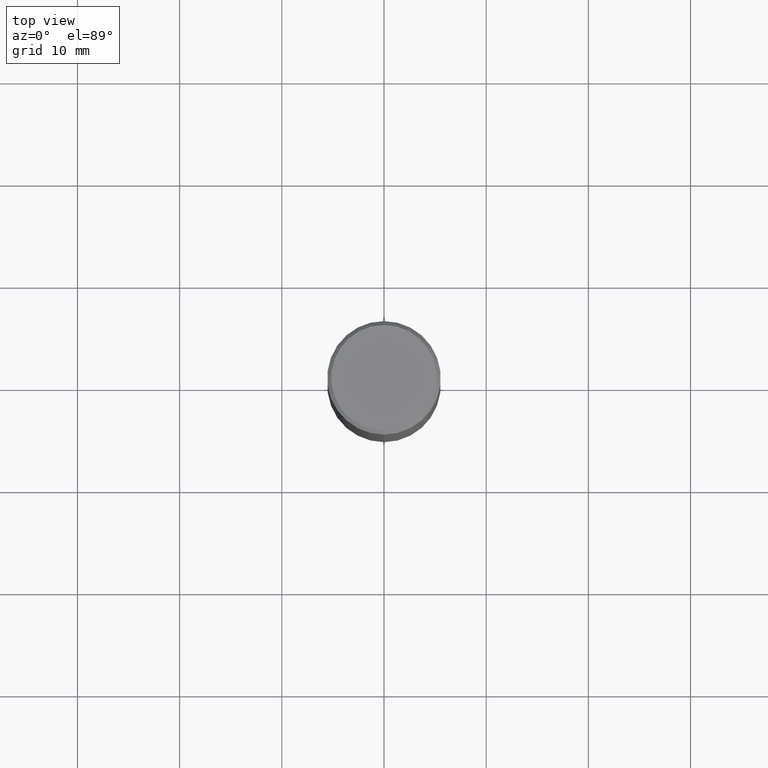
[diagram: clean part render]
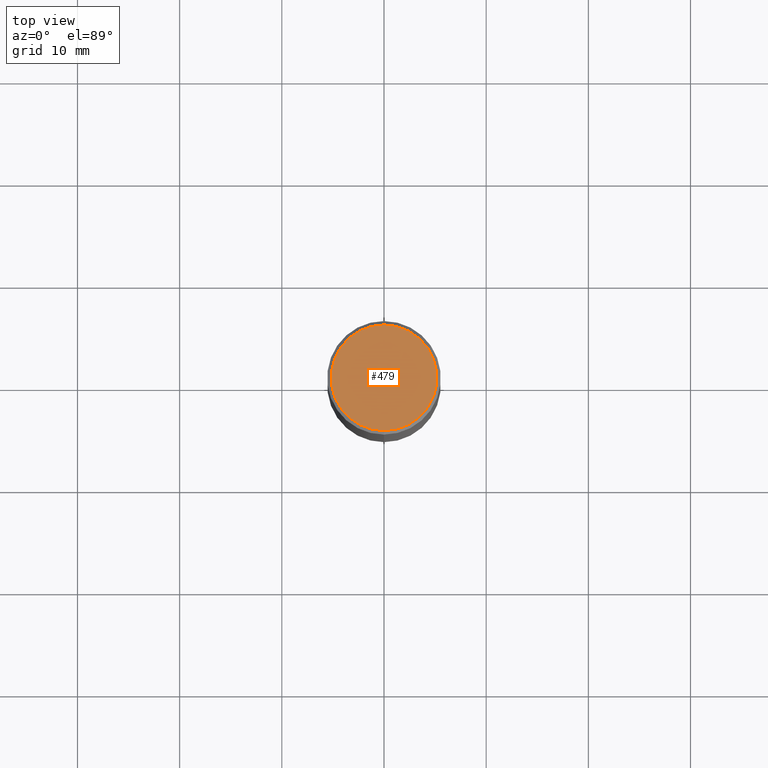
[diagram: same view with one face highlighted and labeled with its STEP entity id]
A machine part, top view. The second image highlights one B-rep face of the part: STEP entity #479.
In plain terms, the highlighted planar face has unit normal (0, -0, -1).
Its self-contained STEP definition (entity closure, byte-faithful):
#15 = AXIS2_PLACEMENT_3D ( 'NONE', #164, #430, #86 ) ;
#27 = AXIS2_PLACEMENT_3D ( 'NONE', #70, #31, #72 ) ;
#30 = EDGE_CURVE ( 'NONE', #341, #95, #400, .T. ) ;
#31 = DIRECTION ( 'NONE',  ( 2.445428866101404443E-29, -3.491538535316297921E-15, -1.000000000000000000 ) ) ;
#70 = CARTESIAN_POINT ( 'NONE',  ( 1.422778645578576487E-15, 0.2037499999999999867, -7.674476811497108312E-16 ) ) ;
#72 = DIRECTION ( 'NONE',  ( 6.982962677686265922E-15, 1.000000000000000000, -3.491538535316297921E-15 ) ) ;
#78 = EDGE_CURVE ( 'NONE', #95, #341, #461, .T. ) ;
#86 = DIRECTION ( 'NONE',  ( -6.982962677686265133E-15, -1.000000000000000000, 3.491538535316298316E-15 ) ) ;
#95 = VERTEX_POINT ( 'NONE', #126 ) ;
#103 = PLANE ( 'NONE',  #27 ) ;
#115 = FACE_OUTER_BOUND ( 'NONE', #253, .T. ) ;
#126 = CARTESIAN_POINT ( 'NONE',  ( -1.449280202029235538E-15, -0.2037499999999999867, 5.993075674126653216E-16 ) ) ;
#132 = CARTESIAN_POINT ( 'NONE',  ( 1.475150865661223764E-15, 0.2037499999999999867, -8.234943857287259354E-16 ) ) ;
#164 = CARTESIAN_POINT ( 'NONE',  ( 2.741164584547628974E-45, -3.913784576302397328E-31, -1.120934091580303315E-16 ) ) ;
#253 = EDGE_LOOP ( 'NONE', ( #409, #310 ) ) ;
#262 = CARTESIAN_POINT ( 'NONE',  ( 2.741164584547628974E-45, -3.913784576302397328E-31, -1.120934091580303315E-16 ) ) ;
#310 = ORIENTED_EDGE ( 'NONE', *, *, #78, .T. ) ;
#341 = VERTEX_POINT ( 'NONE', #132 ) ;
#355 = DIRECTION ( 'NONE',  ( -6.982962677686265133E-15, -1.000000000000000000, 3.491538535316298316E-15 ) ) ;
#400 = CIRCLE ( 'NONE', #478, 0.2037499999999999867 ) ;
#409 = ORIENTED_EDGE ( 'NONE', *, *, #30, .T. ) ;
#415 = DIRECTION ( 'NONE',  ( -2.445428866101404443E-29, 3.491538535316298316E-15, 1.000000000000000000 ) ) ;
#430 = DIRECTION ( 'NONE',  ( -2.445428866101404443E-29, 3.491538535316298316E-15, 1.000000000000000000 ) ) ;
#461 = CIRCLE ( 'NONE', #15, 0.2037499999999999867 ) ;
#478 = AXIS2_PLACEMENT_3D ( 'NONE', #262, #415, #355 ) ;
#479 = ADVANCED_FACE ( 'NONE', ( #115 ), #103, .F. ) ;